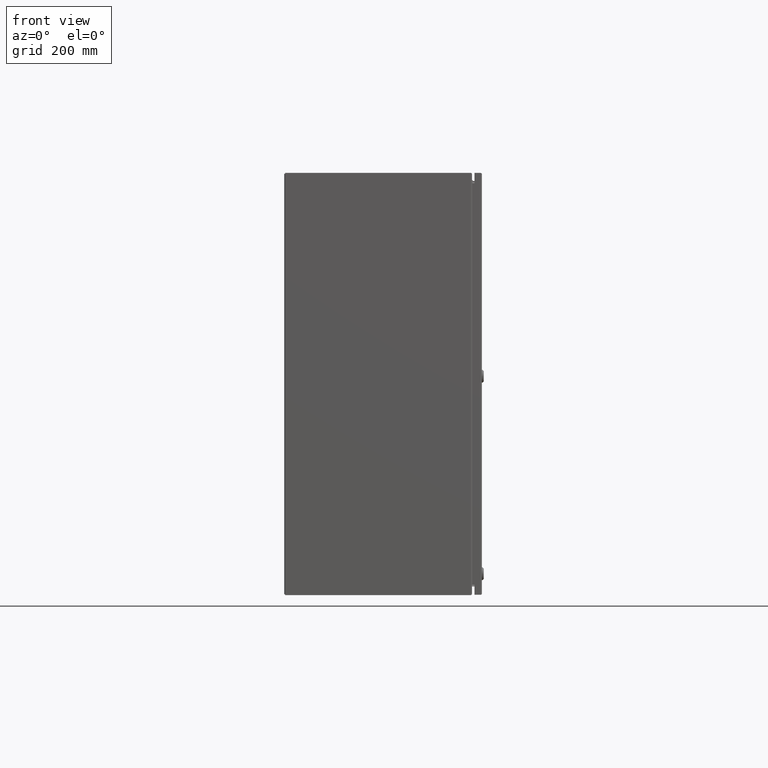
[diagram: clean part render]
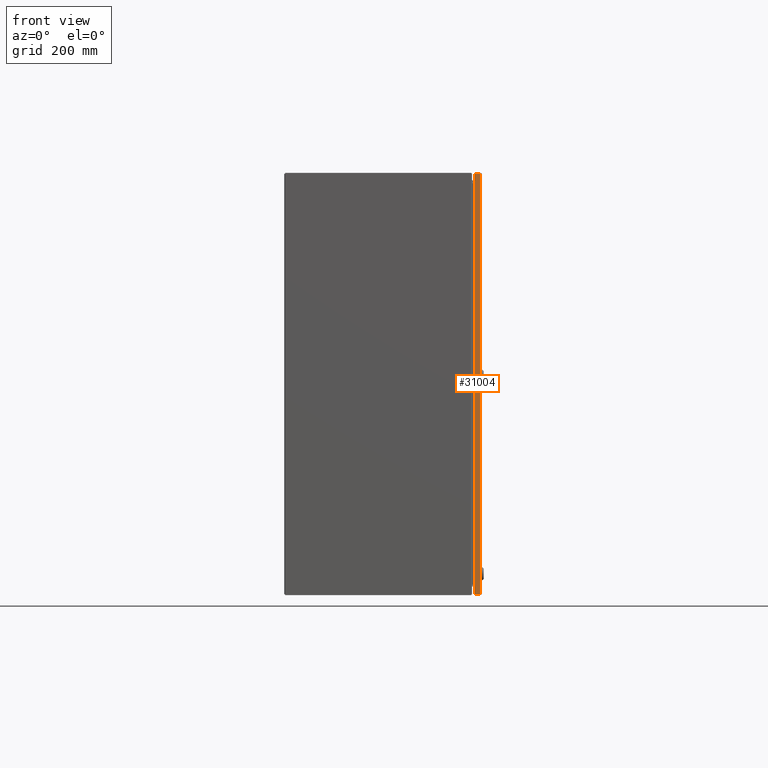
[diagram: same view with one face highlighted and labeled with its STEP entity id]
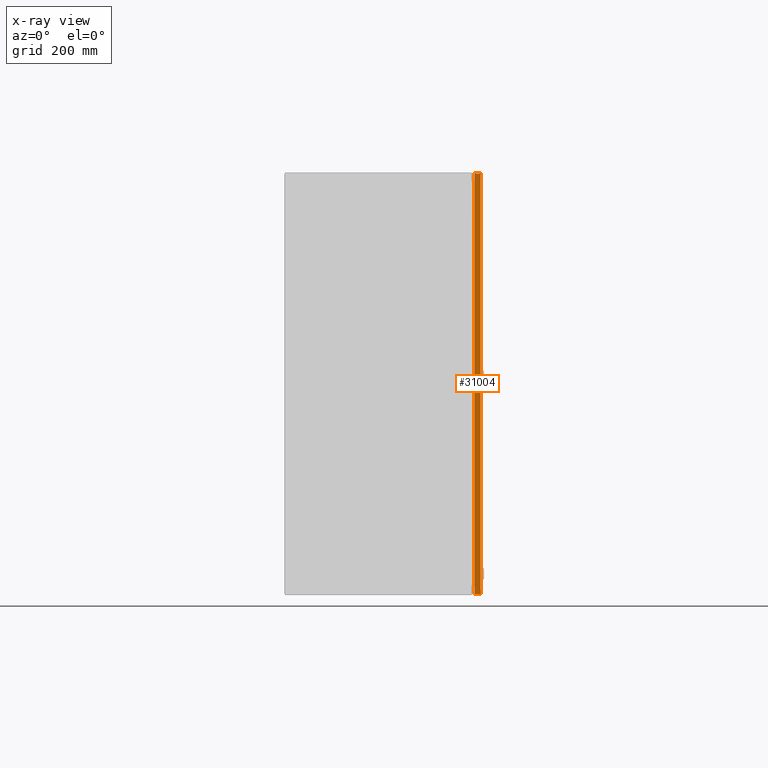
[diagram: x-ray of the same camera — body ghosted, the highlighted face saturated]
A machine part, front view. The second image highlights one B-rep face of the part: STEP entity #31004.
The next image is the same camera in x-ray: the body ghosted, the highlighted face saturated — about 0% of this face is hidden behind the body in this view.
In plain terms, the highlighted planar face has unit normal (-0, 1, -0).
Its self-contained STEP definition (entity closure, byte-faithful):
#169 = DIRECTION ( 'NONE',  ( 0.0000000000000000000, -6.123031769111889989E-17, 1.000000000000000000 ) ) ;
#1971 = CARTESIAN_POINT ( 'NONE',  ( -17.88800000000002655, -16.21700000000004138, -23.98450000000000415 ) ) ;
#1974 = DIRECTION ( 'NONE',  ( -7.770589848645020110E-15, 1.000000000000000000, 0.0000000000000000000 ) ) ;
#6688 = VERTEX_POINT ( 'NONE', #37780 ) ;
#9048 = DIRECTION ( 'NONE',  ( 1.000000000000000000, 0.0000000000000000000, 0.0000000000000000000 ) ) ;
#10475 = CARTESIAN_POINT ( 'NONE',  ( -17.92392125984254747, -16.73400000000007637, -23.98450000000000060 ) ) ;
#10764 = LINE ( 'NONE', #1971, #35969 ) ;
#14181 = EDGE_LOOP ( 'NONE', ( #78030, #76054, #49995, #59891 ) ) ;
#23209 = VECTOR ( 'NONE', #41955, 39.37007874015748143 ) ;
#25821 = VERTEX_POINT ( 'NONE', #57561 ) ;
#27217 = DIRECTION ( 'NONE',  ( 0.0000000000000000000, -1.000000000000000000, -6.123031769111889989E-17 ) ) ;
#27841 = CARTESIAN_POINT ( 'NONE',  ( -17.92392125984254747, -16.77950000000004138, -23.98450000000000415 ) ) ;
#28193 = VERTEX_POINT ( 'NONE', #10475 ) ;
#30331 = AXIS2_PLACEMENT_3D ( 'NONE', #33711, #169, #27217 ) ;
#31004 = ADVANCED_FACE ( 'NONE', ( #42595 ), #32828, .F. ) ;
#32696 = LINE ( 'NONE', #75261, #23209 ) ;
#32828 = PLANE ( 'NONE',  #30331 ) ;
#33711 = CARTESIAN_POINT ( 'NONE',  ( -17.88800000000002655, -16.77950000000004138, -23.98450000000000415 ) ) ;
#34160 = LINE ( 'NONE', #27841, #74995 ) ;
#35969 = VECTOR ( 'NONE', #9048, 39.37007874015748143 ) ;
#37413 = EDGE_CURVE ( 'NONE', #28193, #50187, #32696, .T. ) ;
#37780 = CARTESIAN_POINT ( 'NONE',  ( -17.92392125984255102, -16.21700000000004138, -23.98450000000000415 ) ) ;
#41955 = DIRECTION ( 'NONE',  ( 1.000000000000000000, -3.749399456654639914E-33, -6.123233995736769734E-17 ) ) ;
#42595 = FACE_OUTER_BOUND ( 'NONE', #14181, .T. ) ;
#45455 = EDGE_CURVE ( 'NONE', #25821, #50187, #71707, .T. ) ;
#49995 = ORIENTED_EDGE ( 'NONE', *, *, #45455, .T. ) ;
#50187 = VERTEX_POINT ( 'NONE', #77847 ) ;
#57561 = CARTESIAN_POINT ( 'NONE',  ( 17.90092125984249805, -16.21700000000004138, -23.98450000000000415 ) ) ;
#59891 = ORIENTED_EDGE ( 'NONE', *, *, #37413, .F. ) ;
#62903 = EDGE_CURVE ( 'NONE', #28193, #6688, #34160, .T. ) ;
#69551 = EDGE_CURVE ( 'NONE', #6688, #25821, #10764, .T. ) ;
#71707 = LINE ( 'NONE', #85513, #78011 ) ;
#74995 = VECTOR ( 'NONE', #1974, 39.37007874015748143 ) ;
#75261 = CARTESIAN_POINT ( 'NONE',  ( 17.86499999999997712, -16.73400000000007637, -23.98450000000000060 ) ) ;
#76054 = ORIENTED_EDGE ( 'NONE', *, *, #69551, .T. ) ;
#77847 = CARTESIAN_POINT ( 'NONE',  ( 17.90092125984249805, -16.73400000000005861, -23.98450000000000415 ) ) ;
#78011 = VECTOR ( 'NONE', #84662, 39.37007874015748143 ) ;
#78030 = ORIENTED_EDGE ( 'NONE', *, *, #62903, .T. ) ;
#84662 = DIRECTION ( 'NONE',  ( 1.165588477296749940E-14, -1.000000000000000000, 0.0000000000000000000 ) ) ;
#85513 = CARTESIAN_POINT ( 'NONE',  ( 17.90092125984249805, -16.21700000000004138, -23.98450000000000415 ) ) ;